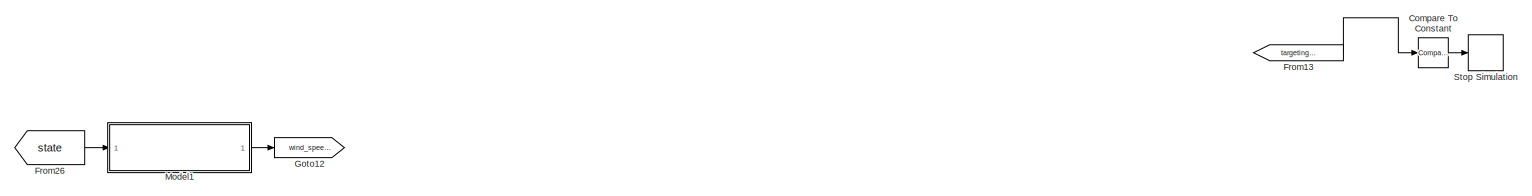
[diagram: root canvas - part 1/5, top center region]
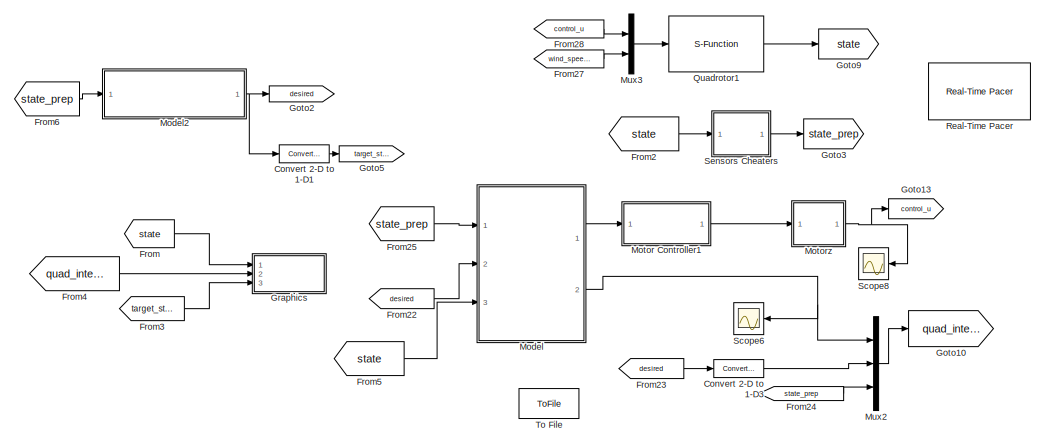
[diagram: root canvas - part 2/5, central region]
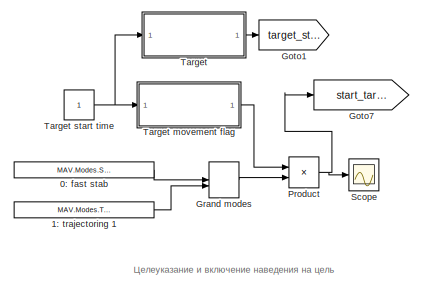
[diagram: root canvas - part 3/5, bottom left region]
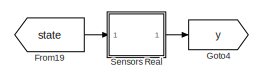
[diagram: root canvas - part 4/5, bottom right region]
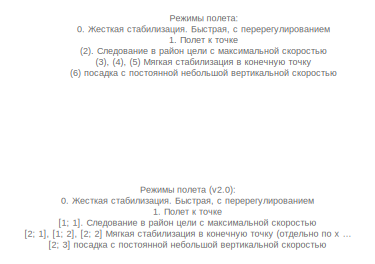
[diagram: root canvas - part 5/5, bottom left region]
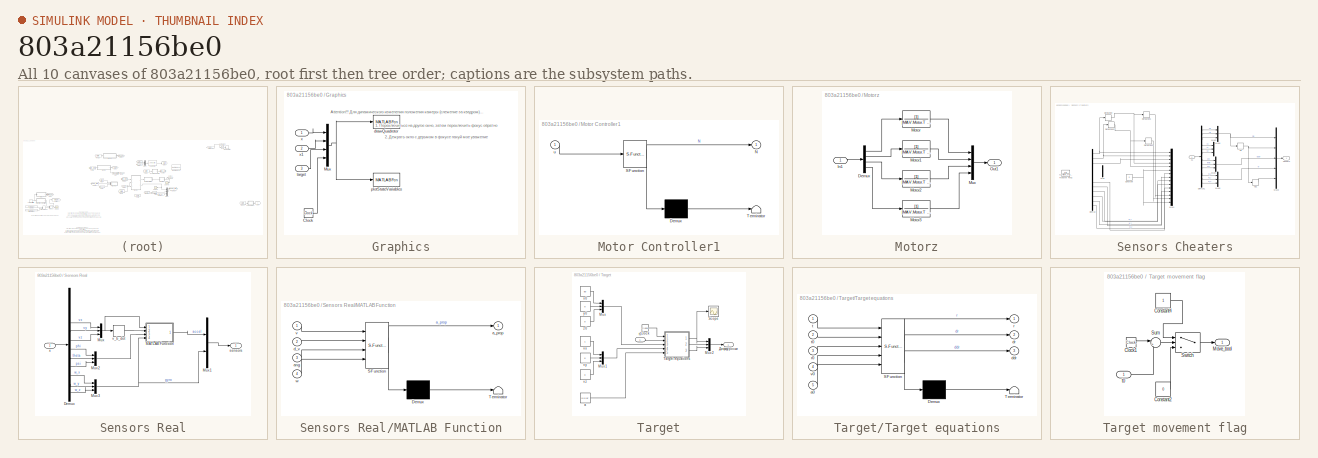
[diagram: thumbnail index - all 10 canvases of the model, root first then tree order]
MODEL slx_803a21156be0
KIND model
CONFIG AbsTol = auto
CONFIG EnableMultiTasking = on
CONFIG FixedStep = auto
CONFIG InitFcn = addpath('simulink/')\ninit_script
CONFIG MaxStep = 0.03
CONFIG MinStep = 1/1000
CONFIG RelTol = 1e-4
CONFIG SampleTimeConstraint = Unconstrained
CONFIG Solver = ode23
CONFIG SolverName = ode23
CONFIG StartTime = 0.0
CONFIG StopTime = 3
WORKSPACE source: mxarray member
WORKSPACE D1_podbor1 = 902.0676
WORKSPACE D1_podbor_psi = 334.133298018
WORKSPACE D1_podbor_y = 97.9069
WORKSPACE D_podbor_x = 10
WORKSPACE D_podbor_z = 10
WORKSPACE I1_podbor1 = 320.9285
WORKSPACE I1_podbor_psi = 2.71828630961
WORKSPACE I1_podbor_y = 0.6752
WORKSPACE I_podbor_x = 50
WORKSPACE I_podbor_z = 50
WORKSPACE P1_podbor1 = 7509.4
WORKSPACE P1_podbor_psi = 848.547345881
WORKSPACE P1_podbor_y = 264.9363
WORKSPACE P_podbor_x = 50
WORKSPACE P_podbor_z = 50
WORKSPACE theta_1_P_param: Simulink.Parameter (value not decoded)
WORKSPACE theta_1_P_paramCopy: Simulink.Parameter (value not decoded)
BLOCK [Constant] 0: fast stab
  Commented = on
  Value = MAV.Modes.Stab_fast.N
BLOCK [Constant] 1: trajectoring 1
  Commented = on
  Value = MAV.Modes.Targeting_1.N
BLOCK [Reference] Compare To Constant  REF=simulink/Logic and Bit
Operations/Compare
To Constant
  Commented = on
  Ports = [1, 1]
  SourceBlock = simulink/Logic and Bit\nOperations/Compare\nTo Constant
  SourceProductBaseCode = SL
  SourceType = Compare To Constant
BLOCK [Reference] Convert 2-D to 1-D1  REF=dspsigattribs/Convert 2-D to 1-D
  Ports = [1, 1]
  SourceBlock = dspsigattribs/Convert 2-D to 1-D
  SourceProductBaseCode = DS
  SourceType = Convert 2-D to 1-D
BLOCK [Reference] Convert 2-D to 1-D3  REF=dspsigattribs/Convert 2-D to 1-D
  Ports = [1, 1]
  SourceBlock = dspsigattribs/Convert 2-D to 1-D
  SourceProductBaseCode = DS
  SourceType = Convert 2-D to 1-D
BLOCK [From] From
  GotoTag = state
  IconDisplay = Tag and signal name
BLOCK [From] From13
  Commented = on
  GotoTag = targeting_mode
BLOCK [From] From19
  Commented = on
  GotoTag = state
BLOCK [From] From2
  GotoTag = state
BLOCK [From] From22
  GotoTag = desired
BLOCK [From] From23
  GotoTag = desired
BLOCK [From] From24
  GotoTag = state_prep
BLOCK [From] From25
  GotoTag = state_prep
BLOCK [From] From26
  GotoTag = state
BLOCK [From] From27
  GotoTag = wind_speeds
BLOCK [From] From28
  GotoTag = control_u
BLOCK [From] From3
  GotoTag = target_state
  IconDisplay = Tag and signal name
BLOCK [From] From4
  GotoTag = quad_internals
  IconDisplay = Tag and signal name
BLOCK [From] From5
  GotoTag = state
BLOCK [From] From6
  GotoTag = state_prep
BLOCK [Goto] Goto1
  Commented = on
  GotoTag = target_state
  IconDisplay = Tag and signal name
BLOCK [Goto] Goto10
  GotoTag = quad_internals
  IconDisplay = Tag and signal name
BLOCK [Goto] Goto12
  GotoTag = wind_speeds
BLOCK [Goto] Goto13
  GotoTag = control_u
BLOCK [Goto] Goto2
  GotoTag = desired
BLOCK [Goto] Goto3
  GotoTag = state_prep
BLOCK [Goto] Goto4
  Commented = on
  GotoTag = y
BLOCK [Goto] Goto5
  GotoTag = target_state
BLOCK [Goto] Goto7
  Commented = on
  GotoTag = start_targeting
BLOCK [Goto] Goto9
  GotoTag = state
BLOCK [ManualSwitch] Grand modes
  Commented = on
BLOCK [SubSystem] Graphics
  Ports = [3]
  RequestExecContextInheritance = off
BLOCK [Clock] Graphics/Clock
BLOCK [Mux] Graphics/Mux
  DisplayOption = bar
  Ports = [4, 1]
BLOCK [MATLABFcn] Graphics/drawQuadrotor
  MATLABFcn = drawQuadrotor(u)
  OutputDimensions = 0
  Ports = [1]
  SampleTime = 0
BLOCK [MATLABFcn] Graphics/plotStateVariables
  MATLABFcn = plotmavstatevariables(u)
  OutputDimensions = 0
  Ports = [1]
BLOCK [Inport] Graphics/target
  Port = 3
BLOCK [Inport] Graphics/x
BLOCK [Inport] Graphics/x1
  Port = 2
BLOCK [ModelReference] Model
  ModelNameDialog = REG1_submodel.slx
  ModelReferenceVersion = 1.548
  Ports = [3, 2]
BLOCK [ModelReference] Model1
  ModelNameDialog = wind_draiden_final.slx
  ModelReferenceVersion = 1.2
  Ports = [1, 1]
BLOCK [ModelReference] Model2
  ModelNameDialog = desired_watcher.slx
  ModelReferenceVersion = 1.46
  Ports = [1, 1]
BLOCK [SubSystem] Motor Controller1
  ErrorFcn = Stateflow.Translate.translate
  PermitHierarchicalResolution = ExplicitOnly
  Ports = [1, 1]
  RequestExecContextInheritance = off
  SFBlockType = MATLAB Function
  TreatAsAtomicUnit = on
BLOCK [Demux] Motor Controller1/ Demux 
  Outputs = 1
  Ports = [1, 1]
BLOCK [S-Function] Motor Controller1/ SFunction 
  EnableBusSupport = on
  FunctionName = sf_sfun
  PortCounts = [1 2]
  Ports = [1, 2]
  SFcnIsStateOwnerBlock = off
  SFunctionDeploymentMode = off
  Tag = Stateflow S-Function 21
BLOCK [Terminator] Motor Controller1/ Terminator 
BLOCK [Outport] Motor Controller1/N
BLOCK [Inport] Motor Controller1/u
BLOCK [SubSystem] Motorz
  Ports = [1, 1]
  RequestExecContextInheritance = off
BLOCK [Demux] Motorz/Demux
  Ports = [1, 4]
BLOCK [Inport] Motorz/In1
BLOCK [TransferFcn] Motorz/Motor
  Denominator = [MAV.Motor.T 1]
BLOCK [TransferFcn] Motorz/Motor1
  Denominator = [MAV.Motor.T 1]
BLOCK [TransferFcn] Motorz/Motor2
  Denominator = [MAV.Motor.T 1]
BLOCK [TransferFcn] Motorz/Motor3
  Denominator = [MAV.Motor.T 1]
BLOCK [Mux] Motorz/Mux
  DisplayOption = bar
  Ports = [4, 1]
BLOCK [Outport] Motorz/Out1
BLOCK [Mux] Mux2
  DisplayOption = bar
  Inputs = 3
  Ports = [3, 1]
BLOCK [Mux] Mux3
  DisplayOption = bar
  Inputs = 2
  Ports = [2, 1]
BLOCK [Product] Product
  Commented = on
  Ports = [2, 1]
BLOCK [S-Function] Quadrotor1
  EnableBusSupport = off
  FunctionName = mav_dynamics
  Parameters = MAV
  Ports = [1, 1]
  SFcnIsStateOwnerBlock = off
  SFunctionDeploymentMode = off
BLOCK [Reference] Real-Time Pacer  REF=realtime_pacer_lib/Real-Time Pacer
  Commented = on
  Ports = []
  SourceBlock = realtime_pacer_lib/Real-Time Pacer
  SourceType = RealTime_Pacer
BLOCK [Scope] Scope
  Commented = on
  Floating = off
  NumInputPorts = 1
  Ports = [1]
  ScopeSpecificationString = Simulink.scopes.TimeScopeBlockCfg('CurrentConfiguration', extmgr.ConfigurationSet(extmgr.Configuration('Core','General UI',true),extmgr.Configuration('Core','Source UI',true),extmgr.Configuration('Sources','WiredSimulink',true,'DataLoggingVariableName','ScopeData7'),extmgr.Configuration('Visuals','Time Domain',true,'SerializedDisplays',{struct('MinYLimReal','-0.125','MaxYLimReal','1.125','YLabelRe...<+1383ch>
BLOCK [Scope] Scope6
  Floating = off
  NumInputPorts = 1
  Ports = [1]
  ScopeSpecificationString = Simulink.scopes.TimeScopeBlockCfg('CurrentConfiguration', extmgr.ConfigurationSet(extmgr.Configuration('Core','General UI',true),extmgr.Configuration('Core','Source UI',true),extmgr.Configuration('Sources','WiredSimulink',true,'DataLoggingVariableName','ScopeData1'),extmgr.Configuration('Visuals','Time Domain',true,'SerializedDisplays',{struct('MinYLimReal','-2666558361.6','MaxYLimReal','266655836...<+1575ch>
BLOCK [Scope] Scope8
  Floating = off
  NumInputPorts = 1
  Ports = [1]
  ScopeSpecificationString = Simulink.scopes.TimeScopeBlockCfg('CurrentConfiguration', extmgr.ConfigurationSet(extmgr.Configuration('Core','General UI',true),extmgr.Configuration('Core','Source UI',true),extmgr.Configuration('Sources','WiredSimulink',true,'DataLoggingVariableName','ScopeData1'),extmgr.Configuration('Visuals','Time Domain',true,'SerializedDisplays',{struct('MinYLimReal','-1209.71378','MaxYLimReal','10887.42402...<+1480ch>
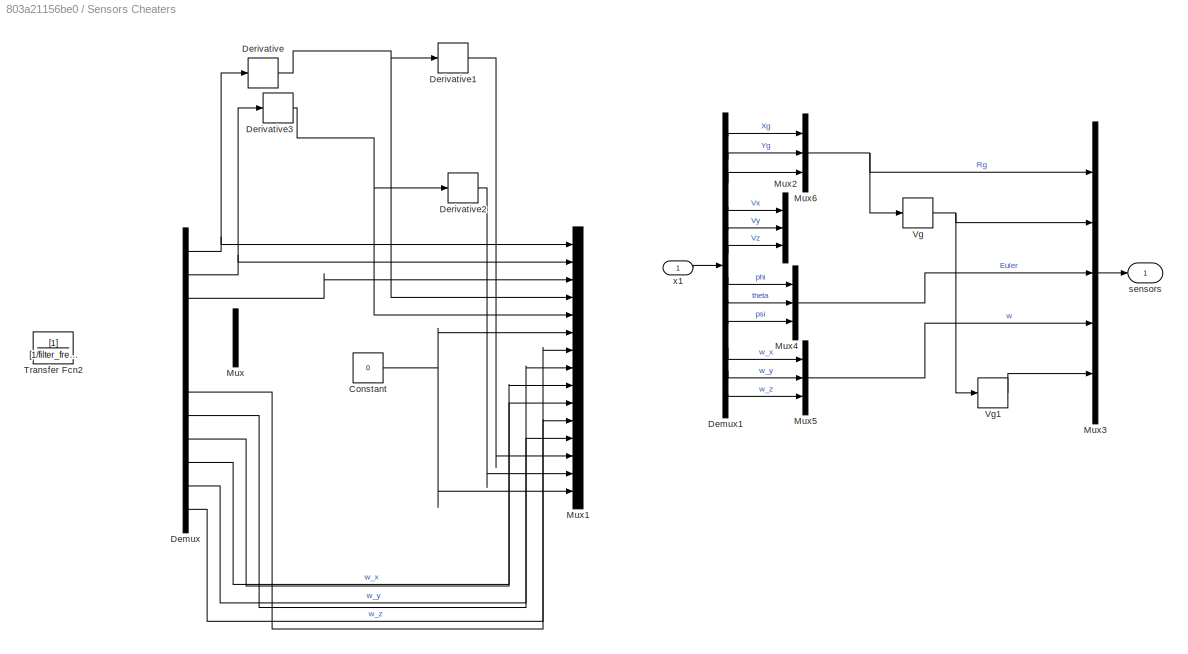
BLOCK [SubSystem] Sensors Cheaters
  Ports = [1, 1]
  RequestExecContextInheritance = off
BLOCK [Constant] Sensors Cheaters/Constant
  Commented = on
  Value = 0
BLOCK [Demux] Sensors Cheaters/Demux
  Commented = on
  Outputs = 12
  Ports = [1, 12]
BLOCK [Demux] Sensors Cheaters/Demux1
  Outputs = 12
  Ports = [1, 12]
BLOCK [Derivative] Sensors Cheaters/Derivative
  Commented = on
BLOCK [Derivative] Sensors Cheaters/Derivative1
  Commented = on
BLOCK [Derivative] Sensors Cheaters/Derivative2
  Commented = on
BLOCK [Derivative] Sensors Cheaters/Derivative3
  Commented = on
BLOCK [Mux] Sensors Cheaters/Mux
  Commented = on
  DisplayOption = bar
  Inputs = 3
  Ports = [3, 1]
BLOCK [Mux] Sensors Cheaters/Mux1
  Commented = on
  DisplayOption = bar
  Inputs = 15
  Ports = [15, 1]
BLOCK [Mux] Sensors Cheaters/Mux2
  DisplayOption = bar
  Inputs = 3
  Ports = [3, 1]
BLOCK [Mux] Sensors Cheaters/Mux3
  DisplayOption = bar
  Inputs = 5
  Ports = [5, 1]
BLOCK [Mux] Sensors Cheaters/Mux4
  DisplayOption = bar
  Inputs = 3
  Ports = [3, 1]
BLOCK [Mux] Sensors Cheaters/Mux5
  DisplayOption = bar
  Inputs = 3
  Ports = [3, 1]
BLOCK [Mux] Sensors Cheaters/Mux6
  DisplayOption = bar
  Inputs = 3
  Ports = [3, 1]
BLOCK [TransferFcn] Sensors Cheaters/Transfer Fcn2
  Commented = on
  Denominator = [1/filter_freq 1]
BLOCK [Derivative] Sensors Cheaters/Vg
BLOCK [Derivative] Sensors Cheaters/Vg1
BLOCK [Outport] Sensors Cheaters/sensors
BLOCK [Inport] Sensors Cheaters/x1
BLOCK [SubSystem] Sensors Real
  Commented = on
  Ports = [1, 1]
  RequestExecContextInheritance = off
BLOCK [Demux] Sensors Real/Demux
  Outputs = 12
  Ports = [1, 12]
BLOCK [SubSystem] Sensors Real/MATLAB Function
  ErrorFcn = Stateflow.Translate.translate
  PermitHierarchicalResolution = ExplicitOnly
  Ports = [4, 1]
  RequestExecContextInheritance = off
  SFBlockType = MATLAB Function
  TreatAsAtomicUnit = on
BLOCK [Demux] Sensors Real/MATLAB Function/ Demux 
  Outputs = 1
  Ports = [1, 1]
BLOCK [S-Function] Sensors Real/MATLAB Function/ SFunction 
  EnableBusSupport = on
  FunctionName = sf_sfun
  PortCounts = [4 2]
  Ports = [4, 2]
  SFcnIsStateOwnerBlock = off
  SFunctionDeploymentMode = off
  Tag = Stateflow S-Function 2
BLOCK [Terminator] Sensors Real/MATLAB Function/ Terminator 
BLOCK [Outport] Sensors Real/MATLAB Function/a_prop
BLOCK [Inport] Sensors Real/MATLAB Function/ang
  Port = 3
BLOCK [Inport] Sensors Real/MATLAB Function/d_v
  Port = 2
BLOCK [Inport] Sensors Real/MATLAB Function/v
BLOCK [Inport] Sensors Real/MATLAB Function/w
  Port = 4
BLOCK [Mux] Sensors Real/Mux
  DisplayOption = bar
  Inputs = 3
  Ports = [3, 1]
BLOCK [Mux] Sensors Real/Mux1
  DisplayOption = bar
  Inputs = 2
  Ports = [2, 1]
BLOCK [Mux] Sensors Real/Mux2
  DisplayOption = bar
  Inputs = 3
  Ports = [3, 1]
BLOCK [Mux] Sensors Real/Mux3
  DisplayOption = bar
  Inputs = 3
  Ports = [3, 1]
BLOCK [Outport] Sensors Real/sensors
BLOCK [Derivative] Sensors Real/v_b_dot
BLOCK [Inport] Sensors Real/x 
BLOCK [Stop] Stop Simulation
  Commented = on
BLOCK [SubSystem] Target
  Ports = [1, 1]
  RequestExecContextInheritance = off
BLOCK [SubSystem] Target movement flag
  Commented = on
  Ports = [1, 1]
  RequestExecContextInheritance = off
BLOCK [Clock] Target movement flag/Clock1
BLOCK [Constant] Target movement flag/Constant2
  Value = 0
BLOCK [Constant] Target movement flag/Constant4
BLOCK [Outport] Target movement flag/Move_bool
BLOCK [Sum] Target movement flag/Sum
  Inputs = |+-
  Ports = [2, 1]
BLOCK [Switch] Target movement flag/Switch
  Criteria = u2 > Threshold
  InputSameDT = off
  SaturateOnIntegerOverflow = off
BLOCK [Inport] Target movement flag/t0
BLOCK [Constant] Target start time
BLOCK [Clock] Target/Clock
BLOCK [Mux] Target/Mux
  DisplayOption = bar
  Inputs = 3
  Ports = [3, 1]
BLOCK [Mux] Target/Mux1
  DisplayOption = bar
  Inputs = 3
  Ports = [3, 1]
BLOCK [Mux] Target/Mux2
  DisplayOption = bar
  Inputs = 3
  Ports = [3, 1]
BLOCK [Scope] Target/Scope
  Floating = off
  NumInputPorts = 1
  Ports = [1]
  ScopeSpecificationString = Simulink.scopes.TimeScopeBlockCfg('CurrentConfiguration', extmgr.ConfigurationSet(extmgr.Configuration('Core','General UI',true),extmgr.Configuration('Core','Source UI',true),extmgr.Configuration('Sources','WiredSimulink',true,'DataLoggingVariableName','ScopeData2'),extmgr.Configuration('Visuals','Time Domain',true,'SerializedDisplays',{struct('MinYLimReal','-12.6825','MaxYLimReal','114.1425','YLa...<+1501ch>
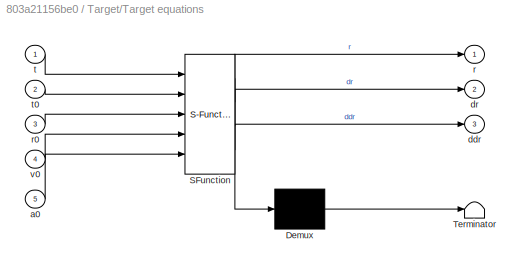
BLOCK [SubSystem] Target/Target equations
  ErrorFcn = Stateflow.Translate.translate
  PermitHierarchicalResolution = ExplicitOnly
  Ports = [5, 3]
  RequestExecContextInheritance = off
  SFBlockType = MATLAB Function
  TreatAsAtomicUnit = on
BLOCK [Demux] Target/Target equations/ Demux 
  Outputs = 1
  Ports = [1, 1]
BLOCK [S-Function] Target/Target equations/ SFunction 
  EnableBusSupport = on
  FunctionName = sf_sfun
  PortCounts = [5 4]
  Ports = [5, 4]
  SFcnIsStateOwnerBlock = off
  SFunctionDeploymentMode = off
  Tag = Stateflow S-Function 4
BLOCK [Terminator] Target/Target equations/ Terminator 
BLOCK [Inport] Target/Target equations/a0
  Port = 5
BLOCK [Outport] Target/Target equations/ddr
  Port = 3
BLOCK [Outport] Target/Target equations/dr
  Port = 2
BLOCK [Outport] Target/Target equations/r
BLOCK [Inport] Target/Target equations/r0
  Port = 3
BLOCK [Inport] Target/Target equations/t
BLOCK [Inport] Target/Target equations/t0
  Port = 2
BLOCK [Inport] Target/Target equations/v0
  Port = 4
BLOCK [Constant] Target/a
  Value = [0 0 0]'
BLOCK [Inport] Target/t0
BLOCK [Constant] Target/vx
BLOCK [Constant] Target/vy
  Value = 0
BLOCK [Constant] Target/vz
  Value = 0
BLOCK [Constant] Target/x0
  Value = 90
BLOCK [Constant] Target/y0
  Value = 0
BLOCK [Constant] Target/z0
  Value = 0
BLOCK [Outport] Target/Диффурочки 
BLOCK [ToFile] To File
  Filename = state_log.mat
  MatrixName = state_log
  Ports = [1]
  SaveFormat = Timeseries
ANNOTATION (root): Режимы полета (v2.0): 0. Жесткая стабилизация. Быстрая, с перерегулированием 1. Полет к точке [1; 1]. Следование в район цели с максимальной скоростью [2; 1], [1; 2], [2; 2] Мягкая стабилизация в конечную точку (отдельно по х и у, нужно два канала [2; 3] посадка с постоянной небольшой вертикальной скоростью
ANNOTATION (root): Режимы полета: 0. Жесткая стабилизация. Быстрая, с перерегулированием 1. Полет к точке (2). Следование в район цели с максимальной скоростью (3), (4), (5) Мягкая стабилизация в конечную точку (6) посадка с постоянной небольшой вертикальной скоростью
ANNOTATION (root): Целеуказание и включение наведения на цель
ANNOTATION Graphics: 1. Переключиться на другое окно, затем переключить фокус обратно
ANNOTATION Graphics: 2. Дежрать окно с дерьмом в фокусе нахуй мое уважение
ANNOTATION Graphics: Attention!!! Для динамического изменения положения камеры (слежение за квадром) необходимо:
LINE 0: fast stab:1 -> Grand modes:1
LINE 1: trajectoring 1:1 -> Grand modes:2
LINE Compare To Constant:1 -> Stop Simulation:1
LINE Convert 2-D to 1-D1:1 -> Goto5:1
LINE Convert 2-D to 1-D3:1 -> Mux2:2
LINE From13:1 -> Compare To Constant:1
LINE From19:1 -> Sensors Real:1
LINE From22:1 -> Model:2
LINE From23:1 -> Convert 2-D to 1-D3:1
LINE From24:1 -> Mux2:3
LINE From25:1 -> Model:1
LINE From26:1 -> Model1:1
LINE From27:1 -> Mux3:2
LINE From28:1 -> Mux3:1
LINE From2:1 -> Sensors Cheaters:1
LINE From3:1 -> Graphics:3
LINE From4:1 -> Graphics:2
LINE From5:1 -> Model:3
LINE From6:1 -> Model2:1
LINE From:1 -> Graphics:1
LINE Grand modes:1 -> Product:2
LINE Graphics/Clock:1 -> Graphics/Mux:4
NET Graphics/Mux:1 -> Graphics/drawQuadrotor:1, Graphics/plotStateVariables:1
LINE Graphics/target:1 -> Graphics/Mux:3
LINE Graphics/x1:1 -> Graphics/Mux:2
LINE Graphics/x:1 -> Graphics/Mux:1
LINE Model1:1 -> Goto12:1
NET Model2:1 -> Convert 2-D to 1-D1:1, Goto2:1
LINE Model:1 -> Motor Controller1:1
NET Model:2 -> Mux2:1, Scope6:1
LINE Motor Controller1:1 -> Motorz:1
LINE Motorz/Demux:1 -> Motorz/Motor:1
LINE Motorz/Demux:2 -> Motorz/Motor1:1
LINE Motorz/Demux:3 -> Motorz/Motor2:1
LINE Motorz/Demux:4 -> Motorz/Motor3:1
LINE Motorz/In1:1 -> Motorz/Demux:1
LINE Motorz/Motor1:1 -> Motorz/Mux:2
LINE Motorz/Motor2:1 -> Motorz/Mux:3
LINE Motorz/Motor3:1 -> Motorz/Mux:4
LINE Motorz/Motor:1 -> Motorz/Mux:1
LINE Motorz/Mux:1 -> Motorz/Out1:1
NET Motorz:1 -> Goto13:1, Scope8:1
LINE Mux2:1 -> Goto10:1
LINE Mux3:1 -> Quadrotor1:1
NET Product:1 -> Goto7:1, Scope:1
LINE Quadrotor1:1 -> Goto9:1
NET Sensors Cheaters/Constant:1 -> Sensors Cheaters/Mux1:15, Sensors Cheaters/Mux1:6
LINE Sensors Cheaters/Demux1:1 -> Sensors Cheaters/Mux6:1
LINE Sensors Cheaters/Demux1:10 -> Sensors Cheaters/Mux5:1
LINE Sensors Cheaters/Demux1:11 -> Sensors Cheaters/Mux5:2
LINE Sensors Cheaters/Demux1:12 -> Sensors Cheaters/Mux5:3
LINE Sensors Cheaters/Demux1:2 -> Sensors Cheaters/Mux6:2
LINE Sensors Cheaters/Demux1:3 -> Sensors Cheaters/Mux6:3
LINE Sensors Cheaters/Demux1:4 -> Sensors Cheaters/Mux2:1
LINE Sensors Cheaters/Demux1:5 -> Sensors Cheaters/Mux2:2
LINE Sensors Cheaters/Demux1:6 -> Sensors Cheaters/Mux2:3
LINE Sensors Cheaters/Demux1:7 -> Sensors Cheaters/Mux4:1
LINE Sensors Cheaters/Demux1:8 -> Sensors Cheaters/Mux4:2
LINE Sensors Cheaters/Demux1:9 -> Sensors Cheaters/Mux4:3
NET Sensors Cheaters/Demux:1 -> Sensors Cheaters/Derivative:1, Sensors Cheaters/Mux1:1
LINE Sensors Cheaters/Demux:10 -> Sensors Cheaters/Mux1:10
LINE Sensors Cheaters/Demux:11 -> Sensors Cheaters/Mux1:12
LINE Sensors Cheaters/Demux:12 -> Sensors Cheaters/Mux1:11
NET Sensors Cheaters/Demux:2 -> Sensors Cheaters/Derivative3:1, Sensors Cheaters/Mux1:2
LINE Sensors Cheaters/Demux:3 -> Sensors Cheaters/Mux1:3
LINE Sensors Cheaters/Demux:7 -> Sensors Cheaters/Mux1:7
LINE Sensors Cheaters/Demux:8 -> Sensors Cheaters/Mux1:8
LINE Sensors Cheaters/Demux:9 -> Sensors Cheaters/Mux1:9
LINE Sensors Cheaters/Derivative1:1 -> Sensors Cheaters/Mux1:13
LINE Sensors Cheaters/Derivative2:1 -> Sensors Cheaters/Mux1:14
NET Sensors Cheaters/Derivative3:1 -> Sensors Cheaters/Derivative2:1, Sensors Cheaters/Mux1:5
NET Sensors Cheaters/Derivative:1 -> Sensors Cheaters/Derivative1:1, Sensors Cheaters/Mux1:4
LINE Sensors Cheaters/Mux3:1 -> Sensors Cheaters/sensors:1
LINE Sensors Cheaters/Mux4:1 -> Sensors Cheaters/Mux3:3
LINE Sensors Cheaters/Mux5:1 -> Sensors Cheaters/Mux3:4
NET Sensors Cheaters/Mux6:1 -> Sensors Cheaters/Mux3:1, Sensors Cheaters/Vg:1
LINE Sensors Cheaters/Vg1:1 -> Sensors Cheaters/Mux3:5
NET Sensors Cheaters/Vg:1 -> Sensors Cheaters/Mux3:2, Sensors Cheaters/Vg1:1
LINE Sensors Cheaters/x1:1 -> Sensors Cheaters/Demux1:1
LINE Sensors Cheaters:1 -> Goto3:1
LINE Sensors Real/Demux:10 -> Sensors Real/Mux3:1
LINE Sensors Real/Demux:11 -> Sensors Real/Mux3:2
LINE Sensors Real/Demux:12 -> Sensors Real/Mux3:3
LINE Sensors Real/Demux:4 -> Sensors Real/Mux:1
LINE Sensors Real/Demux:5 -> Sensors Real/Mux:2
LINE Sensors Real/Demux:6 -> Sensors Real/Mux:3
LINE Sensors Real/Demux:7 -> Sensors Real/Mux2:1
LINE Sensors Real/Demux:8 -> Sensors Real/Mux2:2
LINE Sensors Real/Demux:9 -> Sensors Real/Mux2:3
LINE Sensors Real/MATLAB Function:1 -> Sensors Real/Mux1:1
LINE Sensors Real/Mux1:1 -> Sensors Real/sensors:1
LINE Sensors Real/Mux2:1 -> Sensors Real/MATLAB Function:3
NET Sensors Real/Mux3:1 -> Sensors Real/MATLAB Function:4, Sensors Real/Mux1:2
NET Sensors Real/Mux:1 -> Sensors Real/MATLAB Function:1, Sensors Real/v_b_dot:1
LINE Sensors Real/v_b_dot:1 -> Sensors Real/MATLAB Function:2
LINE Sensors Real/x :1 -> Sensors Real/Demux:1
LINE Sensors Real:1 -> Goto4:1
LINE Target movement flag/Clock1:1 -> Target movement flag/Sum:1
LINE Target movement flag/Constant2:1 -> Target movement flag/Switch:3
LINE Target movement flag/Constant4:1 -> Target movement flag/Switch:1
LINE Target movement flag/Sum:1 -> Target movement flag/Switch:2
LINE Target movement flag/Switch:1 -> Target movement flag/Move_bool:1
LINE Target movement flag/t0:1 -> Target movement flag/Sum:2
LINE Target movement flag:1 -> Product:1
NET Target start time:1 -> Target movement flag:1, Target:1
LINE Target/Clock:1 -> Target/Target equations:1
LINE Target/Mux1:1 -> Target/Target equations:4
LINE Target/Mux2:1 -> Target/Диффурочки :1
LINE Target/Mux:1 -> Target/Target equations:3
NET Target/Target equations:1 -> Target/Mux2:1, Target/Scope:1
LINE Target/Target equations:2 -> Target/Mux2:2
LINE Target/Target equations:3 -> Target/Mux2:3
LINE Target/a:1 -> Target/Target equations:5
LINE Target/t0:1 -> Target/Target equations:2
LINE Target/vx:1 -> Target/Mux1:1
LINE Target/vy:1 -> Target/Mux1:2
LINE Target/vz:1 -> Target/Mux1:3
LINE Target/x0:1 -> Target/Mux:1
LINE Target/y0:1 -> Target/Mux:2
LINE Target/z0:1 -> Target/Mux:3
LINE Target:1 -> Goto1:1
note: NET lines group one-source signal fan-out (src -> all destinations, sorted); 1:1 wires keep LINE
CHART Sensors Real/MATLAB Function states=1 transitions=1
  STATE_LABEL 'eML_blk_kernel()'
  STATE_LABEL 'SCRIPT:\n% Считает проекции кажущегося ускорения,\n% эмуляция показателей акселерометра\n% @v - скорость в связанной СК\n% @d_v - производная скорости выше\n% @ang - углы Эйлера\n% @w - угловая скорость в проекциях на связанные оси\nfunction a_prop = fcn(v, d_v, ang, w)\nphi = ang(1);\ntheta = ang(2); \ng = 9.81;\n\n% coriolis = [\n%     w(3)*v(2) - w(2)*v(3);\n%     w(1)*v(3) - w(3)*v(1);\n%     w(2)*v(1) - w(1...<+353ch>'
CHART Target/Target equations states=1 transitions=1
  STATE_LABEL 'eML_blk_kernel()'
  STATE_LABEL "SCRIPT:\n function [ r, dr, ddr] = fcn(t, t0, r0, v0, a0)\n    t = max(0, t - t0);\n    r = r0 + v0*t + a0*t.^2/2;\n    dr = v0 + a0*t;\n    ddr = [0 0 0]';\n"
CHART Motor Controller1 states=1 transitions=1
  STATE_LABEL 'eML_blk_kernel()'
  STATE_LABEL "SCRIPT:\n% Calculate desired motor speeds N with given control u\nfunction N = fcn(u)\nu_T = u(1);\nu_x = u(2);\nu_y = u(3);\nu_z = u(4);\n\n% NN = 0.25*[u_T+u_z u_T+u_z u_T-u_z u_T-u_z]';\n% A = (1/4)*[\n%     1 1;\n%     1 1;\n%     1 -1;\n%     1 -1\n% ];\nA = (1/4)*[\n    1 1 1 1;\n    1 -1 -1 1;\n    1 -1 1 -1;\n    1 1 -1 -1;\n];\n\nNN = A*[u_T; u_x; u_y; u_z];\nNN = max(NN, 0);\nN = sqrt(NN);\n\n% If we want at once...<+86ch>"
CHART  states=0 transitions=0
CHART  states=0 transitions=0
CHART  states=0 transitions=0
